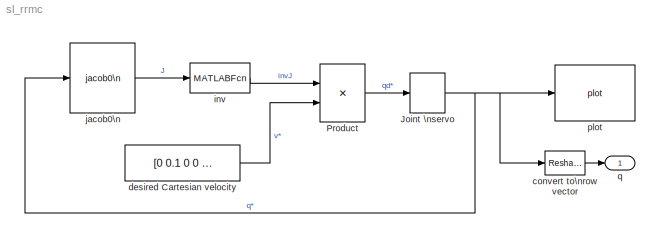
MODEL sl_rrmc
KIND model
BLOCK [DiscreteIntegrator] Joint \nservo
  ExternalReset = none
  ICPrevOutput = DiscIntNeverNeededParam
  ICPrevScaledInput = DiscIntNeverNeededParam
  InitialCondition = qn'
  InitialConditionSource = internal
  IntegratorMethod = Integration: Forward Euler
  Ports = [1, 1]
  SID = 3
  SampleTime = 0.05
BLOCK [Product] Product
  InputSameDT = off
  Multiplication = Matrix(*)
  Ports = [2, 1]
  RndMeth = Floor
  SID = 5
BLOCK [Reshape] convert to\nrow vector
  OutputDimensionality = Customize
  OutputDimensions = 6
  Ports = [1, 1]
  SID = 19
BLOCK [Constant] desired Cartesian velocity
  SID = 1
  Value = [0 0.1 0 0 0 0]'
  VectorParams1D = off
BLOCK [MATLABFcn] inv
  MATLABFcn = inv
  Output1D = off
  Ports = [1, 1]
  SID = 22
BLOCK [Reference] jacob0\n  REF=roblocks/Kinematics/jacob0\n  (lib defined in mdl_2a292b13c81b, mdl_69400f8cfe22, +12 more)
  FunctionWithSeparateData = off
  GeneratePreprocessorConditionals = off
  Ports = [1, 1]
  RTWMemSecDataConstants = Inherit from model
  RTWMemSecDataInternal = Inherit from model
  RTWMemSecDataParameters = Inherit from model
  RTWMemSecFuncExecute = Inherit from model
  RTWMemSecFuncInitTerm = Inherit from model
  SID = 15
  ShowPortLabels = FromPortIcon
  SourceBlock = roblocks/Kinematics/jacob0\n
  SystemSampleTime = -1
  robot = p560
BLOCK [Reference] plot  REF=roblocks/Robot Graphics/plot  (lib defined in mdl_2a292b13c81b, mdl_69400f8cfe22, +12 more)
  FunctionWithSeparateData = off
  GeneratePreprocessorConditionals = off
  Ports = [1]
  RTWMemSecDataConstants = Inherit from model
  RTWMemSecDataInternal = Inherit from model
  RTWMemSecDataParameters = Inherit from model
  RTWMemSecFuncExecute = Inherit from model
  RTWMemSecFuncInitTerm = Inherit from model
  SID = 16
  ShowPortLabels = FromPortIcon
  SourceBlock = roblocks/Robot Graphics/plot
  SystemSampleTime = -1
  robot = p560
BLOCK [Outport] q
  IconDisplay = Port number
  SID = 17
NET Joint \nservo:1 -> convert to\nrow vector:1, jacob0\n:1, plot:1
LINE Product:1 -> Joint \nservo:1
LINE convert to\nrow vector:1 -> q:1
LINE desired Cartesian velocity:1 -> Product:2
LINE inv:1 -> Product:1
LINE jacob0\n:1 -> inv:1
note: NET lines group one-source signal fan-out (src -> all destinations, sorted); 1:1 wires keep LINE
